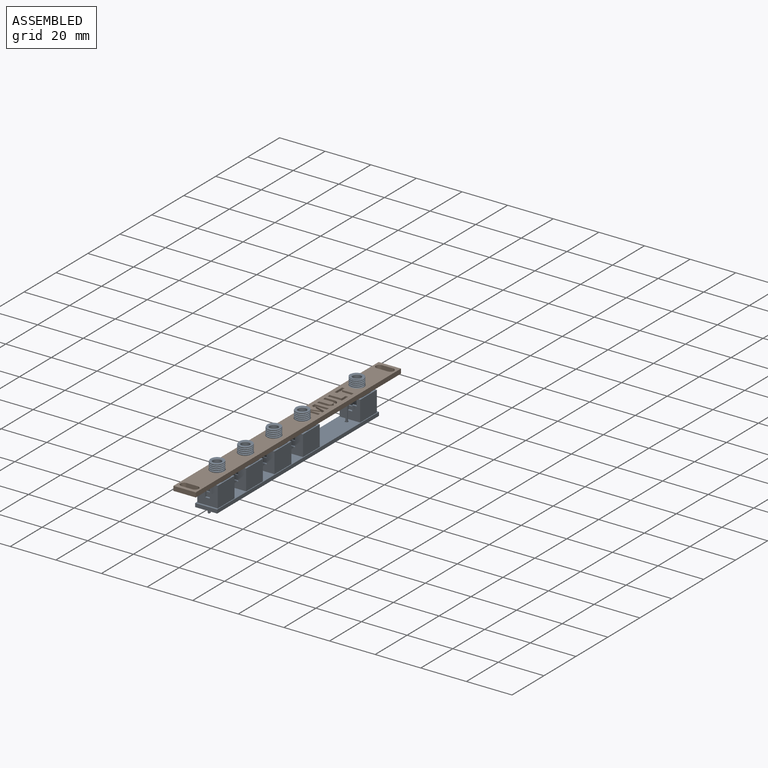
[diagram: assembled view]
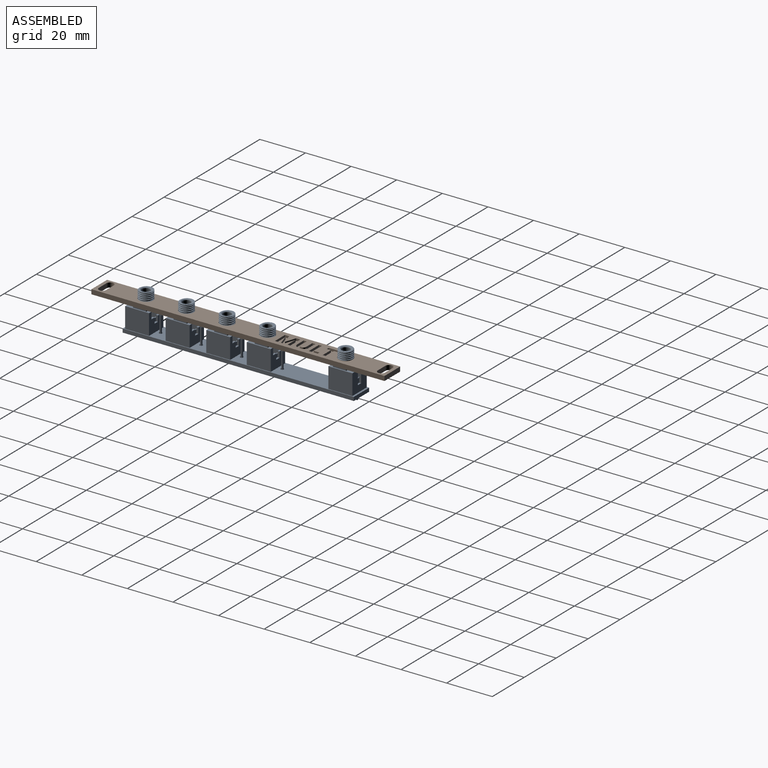
[diagram: assembled view, second angle]
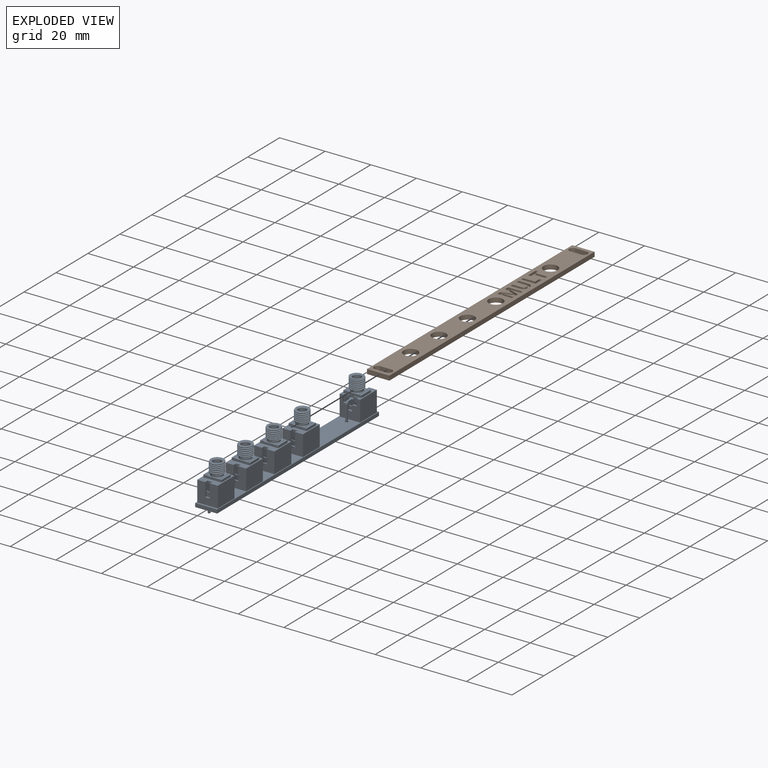
[diagram: exploded view]
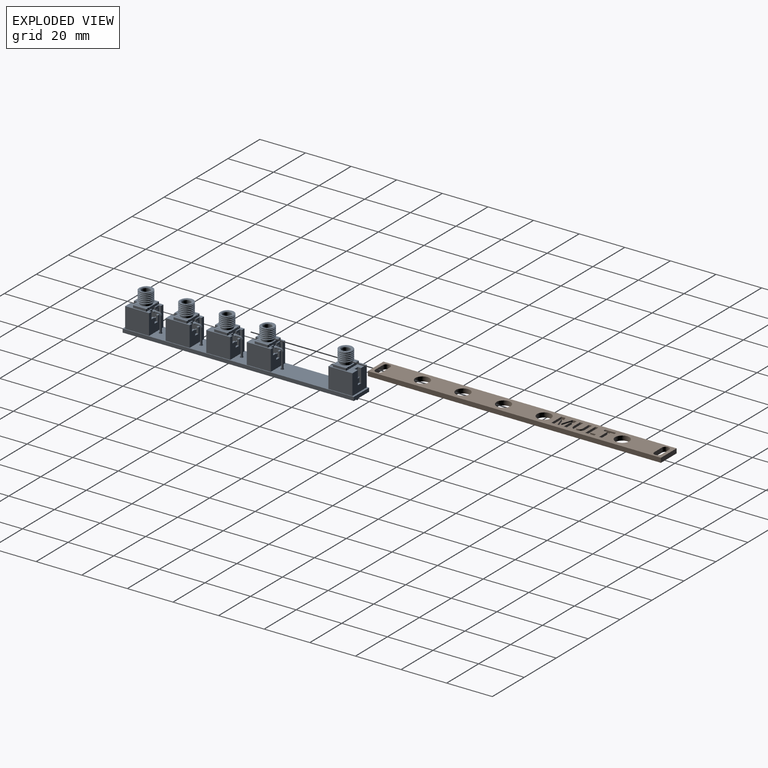
[diagram: exploded view, second angle]
FCSTD DOCUMENT  (FreeCAD 0.20R29177 (Git))
Label: Mult_Panel
License: All rights reserved
LicenseURL: http://en.wikipedia.org/wiki/All_rights_reserved
objects: Part::Feature×6, App::Part×4, App::Link×4, Sketcher::SketchObject×2, Spreadsheet::Sheet×1, PartDesign::Pad×1, PartDesign::CoordinateSystem×1, App::LinkGroup×1, Part::Part2DObjectPython×1, PartDesign::Pocket×1, PartDesign::Body×1
note: 15 computed .brp shape members not serialized (recipe doc carries the construction recipe); baked Part::Feature solids carry a one-line shape summary decoded from their .brp

FEATURE [Sketcher::SketchObject] Sketch
  AttachmentOffset = pos=(0,0,10) rot=(0,0,1;0rad)
  FullyConstrained = true
  MapMode = 5
  Placement = pos=(0,0,10) rot=(0,0,1;0rad)
  Support = -> [XY_Plane004]
  expr: Constraints[10] = Spreadsheet.panel_height
  expr: Constraints[11] = Spreadsheet.panel_height / 2 - Spreadsheet.pcb_height / 2
  expr: Constraints[18] = Spreadsheet.slot_offset
  expr: Constraints[19] = Spreadsheet.slot_width - Spreadsheet.slot_height
  expr: Constraints[20] = Spreadsheet.slot_height
  expr: Constraints[34] = Spreadsheet.slot_width - Spreadsheet.slot_height
  expr: Constraints[35] = Spreadsheet.slot_height
  expr: Constraints[36] = Spreadsheet.slot_offset
  expr: Constraints[44] = Spreadsheet.jack_diameter + Spreadsheet.jack_diameter_relief
  expr: Constraints[45] = Spreadsheet.jack_y_axis_offset
  expr: Constraints[46] = Spreadsheet.top_jack_x_axis_offset
  expr: Constraints[47] = Spreadsheet.jack_y_axis_offset
  expr: Constraints[48] = Spreadsheet.jack_diameter + Spreadsheet.jack_diameter_relief
  expr: Constraints[49] = Spreadsheet.bottom_jack_x_axis_offset
  expr: Constraints[50] = Spreadsheet.lower_jacks_distance
  expr: Constraints[57] = Spreadsheet.lower_jacks_distance
  expr: Constraints[58] = Spreadsheet.lower_jacks_distance
  expr: Constraints[9] = Spreadsheet.panel_width
  sketch-geometry (21):
    g0: LineSegment StartX=0 StartY=13.575 StartZ=0 EndX=9.8 EndY=13.575 EndZ=0
    g1: LineSegment StartX=9.8 StartY=13.575 StartZ=0 EndX=9.8 EndY=-114.925 EndZ=0
    g2: LineSegment StartX=9.8 StartY=-114.925 StartZ=0 EndX=0 EndY=-114.925 EndZ=0
    g3: LineSegment StartX=0 StartY=-114.925 StartZ=0 EndX=0 EndY=13.575 EndZ=0
    g4: ArcOfCircle CenterX=2.5 CenterY=10.475 CenterZ=0 NormalX=0 NormalY=0 NormalZ=1 AngleXU=0 Radius=1.6 StartAngle=1.5708 EndAngle=4.71239
    g5: ArcOfCircle CenterX=7.3 CenterY=10.475 CenterZ=0 NormalX=0 NormalY=0 NormalZ=1 AngleXU=0 Radius=1.6 StartAngle=4.71239 EndAngle=7.85398
    g6: LineSegment StartX=2.5 StartY=8.875 StartZ=0 EndX=7.3 EndY=8.875 EndZ=0
    g7: LineSegment StartX=7.3 StartY=12.075 StartZ=0 EndX=2.5 EndY=12.075 EndZ=0
    g8: LineSegment StartX=2.5 StartY=10.475 StartZ=0 EndX=0 EndY=10.475 EndZ=0
    g9: LineSegment StartX=7.3 StartY=10.475 StartZ=0 EndX=9.8 EndY=10.475 EndZ=0
    g10: ArcOfCircle CenterX=2.5 CenterY=-111.825 CenterZ=0 NormalX=0 NormalY=0 NormalZ=1 AngleXU=0 Radius=1.6 StartAngle=1.5708 EndAngle=4.71239
    g11: ArcOfCircle CenterX=7.3 CenterY=-111.825 CenterZ=0 NormalX=0 NormalY=0 NormalZ=1 AngleXU=0 Radius=1.6 StartAngle=4.71239 EndAngle=7.85398
    g12: LineSegment StartX=2.5 StartY=-113.425 StartZ=0 EndX=7.3 EndY=-113.425 EndZ=0
    g13: LineSegment StartX=7.3 StartY=-110.225 StartZ=0 EndX=2.5 EndY=-110.225 EndZ=0
    g14: LineSegment StartX=7.3 StartY=-111.825 StartZ=0 EndX=9.8 EndY=-111.825 EndZ=0
    g15: LineSegment StartX=2.5 StartY=-111.825 StartZ=0 EndX=0 EndY=-111.825 EndZ=0
    g16: Circle CenterX=4.826 CenterY=-6.858 CenterZ=0 NormalX=0 NormalY=0 NormalZ=1 AngleXU=0 Radius=3.1
    g17: Circle CenterX=4.826 CenterY=-94.468 CenterZ=0 NormalX=0 NormalY=0 NormalZ=1 AngleXU=0 Radius=3.1
    g18: Circle CenterX=4.826 CenterY=-76.688 CenterZ=0 NormalX=0 NormalY=0 NormalZ=1 AngleXU=0 Radius=3.1
    g19: Circle CenterX=4.826 CenterY=-58.908 CenterZ=0 NormalX=0 NormalY=0 NormalZ=1 AngleXU=0 Radius=3.1
    g20: Circle CenterX=4.826 CenterY=-41.128 CenterZ=0 NormalX=0 NormalY=0 NormalZ=1 AngleXU=0 Radius=3.1
  constraints (59):
    c: Coincident(g0,g1)
    c: Coincident(g1,g2)
    c: Coincident(g2,g3)
    c: Coincident(g3,g0)
    c: Horizontal(g0)
    c: Horizontal(g2)
    c: Vertical(g1)
    c: Vertical(g3)
    c: PointOnObject(g0,g-2)
    c: DistanceX(g2,g2) = 9.8
    c: DistanceY(g1,g1) = 128.5
    c: DistanceY(g-1,g0) = 13.575
    c: Tangent(g4,g6) = -1.5708
    c: Tangent(g6,g5) = -1.5708
    c: Tangent(g5,g7) = -1.5708
    c: Tangent(g7,g4) = -1.5708
    c: Equal(g4,g5)
    c: Horizontal(g6)
    c: DistanceY(g5,g0) = 3.1
    c: DistanceX(g4,g5) = 4.8
    c: DistanceY(g5,g5) = 3.2
    c: Coincident(g8,g4)
    c: PointOnObject(g8,g3)
    c: Horizontal(g8)
    c: Coincident(g9,g5)
    c: PointOnObject(g9,g1)
    c: Horizontal(g9)
    c: Equal(g9,g8)
    c: Tangent(g10,g12) = -1.5708
    c: Tangent(g12,g11) = -1.5708
    c: Tangent(g11,g13) = -1.5708
    c: Tangent(g13,g10) = -1.5708
    c: Equal(g10,g11)
    c: Horizontal(g12)
    c: DistanceX(g10,g11) = 4.8
    c: DistanceY(g11,g11) = 3.2
    c: DistanceY(g1,g11) = 3.1
    c: Coincident(g14,g11)
    c: PointOnObject(g14,g1)
    c: Horizontal(g14)
    c: Coincident(g15,g10)
    c: PointOnObject(g15,g3)
    c: Horizontal(g15)
    c: Equal(g15,g14)
    c: Diameter(g16) = 6.2
    c: DistanceX(g-1,g16) = 4.826
    c: DistanceY(g16,g-1) = 6.858
    c: DistanceX(g-1,g17) = 4.826
    c: Diameter(g17) = 6.2
    c: DistanceY(g17,g-1) = 94.468
    c: DistanceY(g17,g18) = 17.78
    c: Equal(g18,g19)
    c: Equal(g19,g20)
    c: Equal(g20,g17)
    c: Vertical(g17,g18)
    c: Vertical(g19,g20)
    c: Vertical(g20,g18)
    c: DistanceY(g18,g19) = 17.78
    c: DistanceY(g19,g20) = 17.78
FEATURE [Spreadsheet::Sheet] Spreadsheet
  cells = A1=slot_width; B1(slot_width)=8; A2=slot_height; B2(slot_height)=3.2; A3=slot_offset; B3(slot_offset)=3.1; A4=panel_height; B4(panel_height)=128.5; A5=panel_width; B5(panel_width)=9.800000000000001; A6=pcb_height; B6(pcb_height)=101.35; A7=panel_thickness; B7(panel_thickness)=2; A8=jack_y_axis_offset; B8(jack_y_axis_offset)=4.826; A9=jack_diameter; B9(jack_diameter)=6; A10=top_jack_x_axis_offset; B10(top_jack_x_axis_offset)=6.858; A11=bottom_jack_x_axis_offset; B11(bottom_jack_x_axis_offset)=94.468; A12=jack_diameter_relief; B12(jack_diameter_relief)=0.2; A13=lower_jacks_distance; B13(lower_jacks_distance)=17.78
FEATURE [PartDesign::Pad] Pad
  Direction = (0,0,1)
  Length = 2
  Length2 = 10
  Profile = -> Sketch
  ReferenceAxis = -> Sketch [N_Axis]
  Type = 0
  expr: Length = Spreadsheet.panel_thickness
FEATURE [PartDesign::CoordinateSystem] Local_CS_14b6
  AttacherType = Attacher::AttachEngine3D
FEATURE [Part::Feature] Pcb_14b6
  Placement = pos=(-147.828,54.58,0) rot=(0,0,1;0rad)
  shape: bbox 9.652 x 101.3 x 1.6 mm, 21 faces (baked)
FEATURE [Sketcher::SketchObject] PCB_Sketch_14b6
  FullyConstrained = false
  sketch-geometry (4):
    g0: LineSegment StartX=0 StartY=0 StartZ=0 EndX=9.652 EndY=0 EndZ=0
    g1: LineSegment StartX=9.652 StartY=-101.346 StartZ=0 EndX=0 EndY=-101.346 EndZ=0
    g2: LineSegment StartX=0 StartY=-101.346 StartZ=0 EndX=0 EndY=0 EndZ=0
    g3: LineSegment StartX=9.652 StartY=0 StartZ=0 EndX=9.652 EndY=-101.346 EndZ=0
  constraints (4):
    c: Coincident(g1,g2)
    c: Coincident(g0,g2)
    c: Coincident(g1,g3)
    c: Coincident(g0,g3)
FEATURE [App::Part] Board_Geoms_14b6
  Group = -> [Local_CS_14b6,Pcb_14b6,PCB_Sketch_14b6]
  Origin = -> Origin
FEATURE [Part::Feature] Solid  label="T"
  shape: bbox 7.5 x 0.5 x 8.5 mm, 14 faces (baked)
FEATURE [Part::Feature] Solid001  label="TN"
  shape: bbox 7.5 x 0.5 x 8.5 mm, 14 faces (baked)
FEATURE [Part::Feature] Solid002  label="Hole"
  shape: bbox 6.281 x 6.417 x 6.463 mm, 37 faces (baked)
FEATURE [Part::Feature] Solid003  label="S"
  shape: bbox 5.8 x 9.73 x 11.55 mm, 33 faces (baked)
FEATURE [Part::Feature] Solid004  label="Body"
  shape: bbox 9 x 10.5 x 10 mm, 61 faces (baked)
FEATURE [App::LinkGroup] LinkGroup  label="J2_LinkGroup_5c792b5a98d4"
  ElementList = -> [Solid,Solid001,Solid002,Solid003,Solid004]
  LinkMode = 0
  Placement = pos=(4.826,-41.148,0) rot=(0,0,1;3.14159rad)
FEATURE [App::Link] J2_LinkGroup_5c792b5a98d4_ln_  label="J3_LinkGroup_a546f4ffa4d9"
  LinkPlacement = pos=(4.826,-58.928,0) rot=(0,0,1;3.14159rad)
  LinkedObject = -> LinkGroup
  Placement = pos=(4.826,-58.928,0) rot=(0,0,1;3.14159rad)
FEATURE [App::Link] J2_LinkGroup_5c792b5a98d4_ln_001  label="J4_LinkGroup_ac7c97a42de9"
  LinkPlacement = pos=(4.826,-76.708,0) rot=(0,0,1;3.14159rad)
  LinkedObject = -> LinkGroup
  Placement = pos=(4.826,-76.708,0) rot=(0,0,1;3.14159rad)
FEATURE [App::Link] J2_LinkGroup_5c792b5a98d4_ln_002  label="J5_LinkGroup_364d16c9cc91"
  LinkPlacement = pos=(4.826,-94.488,0) rot=(0,0,1;3.14159rad)
  LinkedObject = -> LinkGroup
  Placement = pos=(4.826,-94.488,0) rot=(0,0,1;3.14159rad)
FEATURE [App::Link] J2_LinkGroup_5c792b5a98d4_ln_003  label="J1_LinkGroup_c6b1f080a125"
  LinkPlacement = pos=(4.826,-6.858,0) rot=(0,0,1;0rad)
  LinkedObject = -> LinkGroup
  Placement = pos=(4.826,-6.858,0) rot=(0,0,1;0rad)
FEATURE [App::Part] Top_14b6
  Group = -> [LinkGroup,J2_LinkGroup_5c792b5a98d4_ln_,J2_LinkGroup_5c792b5a98d4_ln_001,J2_LinkGroup_5c792b5a98d4_ln_002,J2_LinkGroup_5c792b5a98d4_ln_003]
  Origin = -> Origin003
FEATURE [App::Part] Step_Models_14b6
  Group = -> [Top_14b6]
  Origin = -> Origin002
FEATURE [App::Part] Board_14b6  label="Mult_PCB"
  Group = -> [Board_Geoms_14b6,Step_Models_14b6]
  Origin = -> Origin001
FEATURE [Part::Part2DObjectPython] ShapeString  # Draft 2D object (typed FeaturePython)
  FontFile = <userpath>/Downloads/Open_Sans/static/OpenSans/OpenSans-Bold.ttf
  MakeFace = true
  Placement = pos=(7.98,-36.5,11) rot=(0,0,1;1.5708rad)
  Size = 8
  String = MULT
  Tracking = 0
FEATURE [PartDesign::Pocket] Pocket
  BaseFeature = -> Pad
  Direction = (0,0,-1)
  Length = 0
  Length2 = 5
  Profile = -> ShapeString
  ReferenceAxis = -> ShapeString [N_Axis]
  Type = 3
  UpToFace = -> Pad [Face19]
FEATURE [PartDesign::Body] Body  label="Mult_Panel"
  Group = -> [Sketch,Pad,ShapeString,Pocket]
  Origin = -> Origin004
  Tip = -> Pocket
